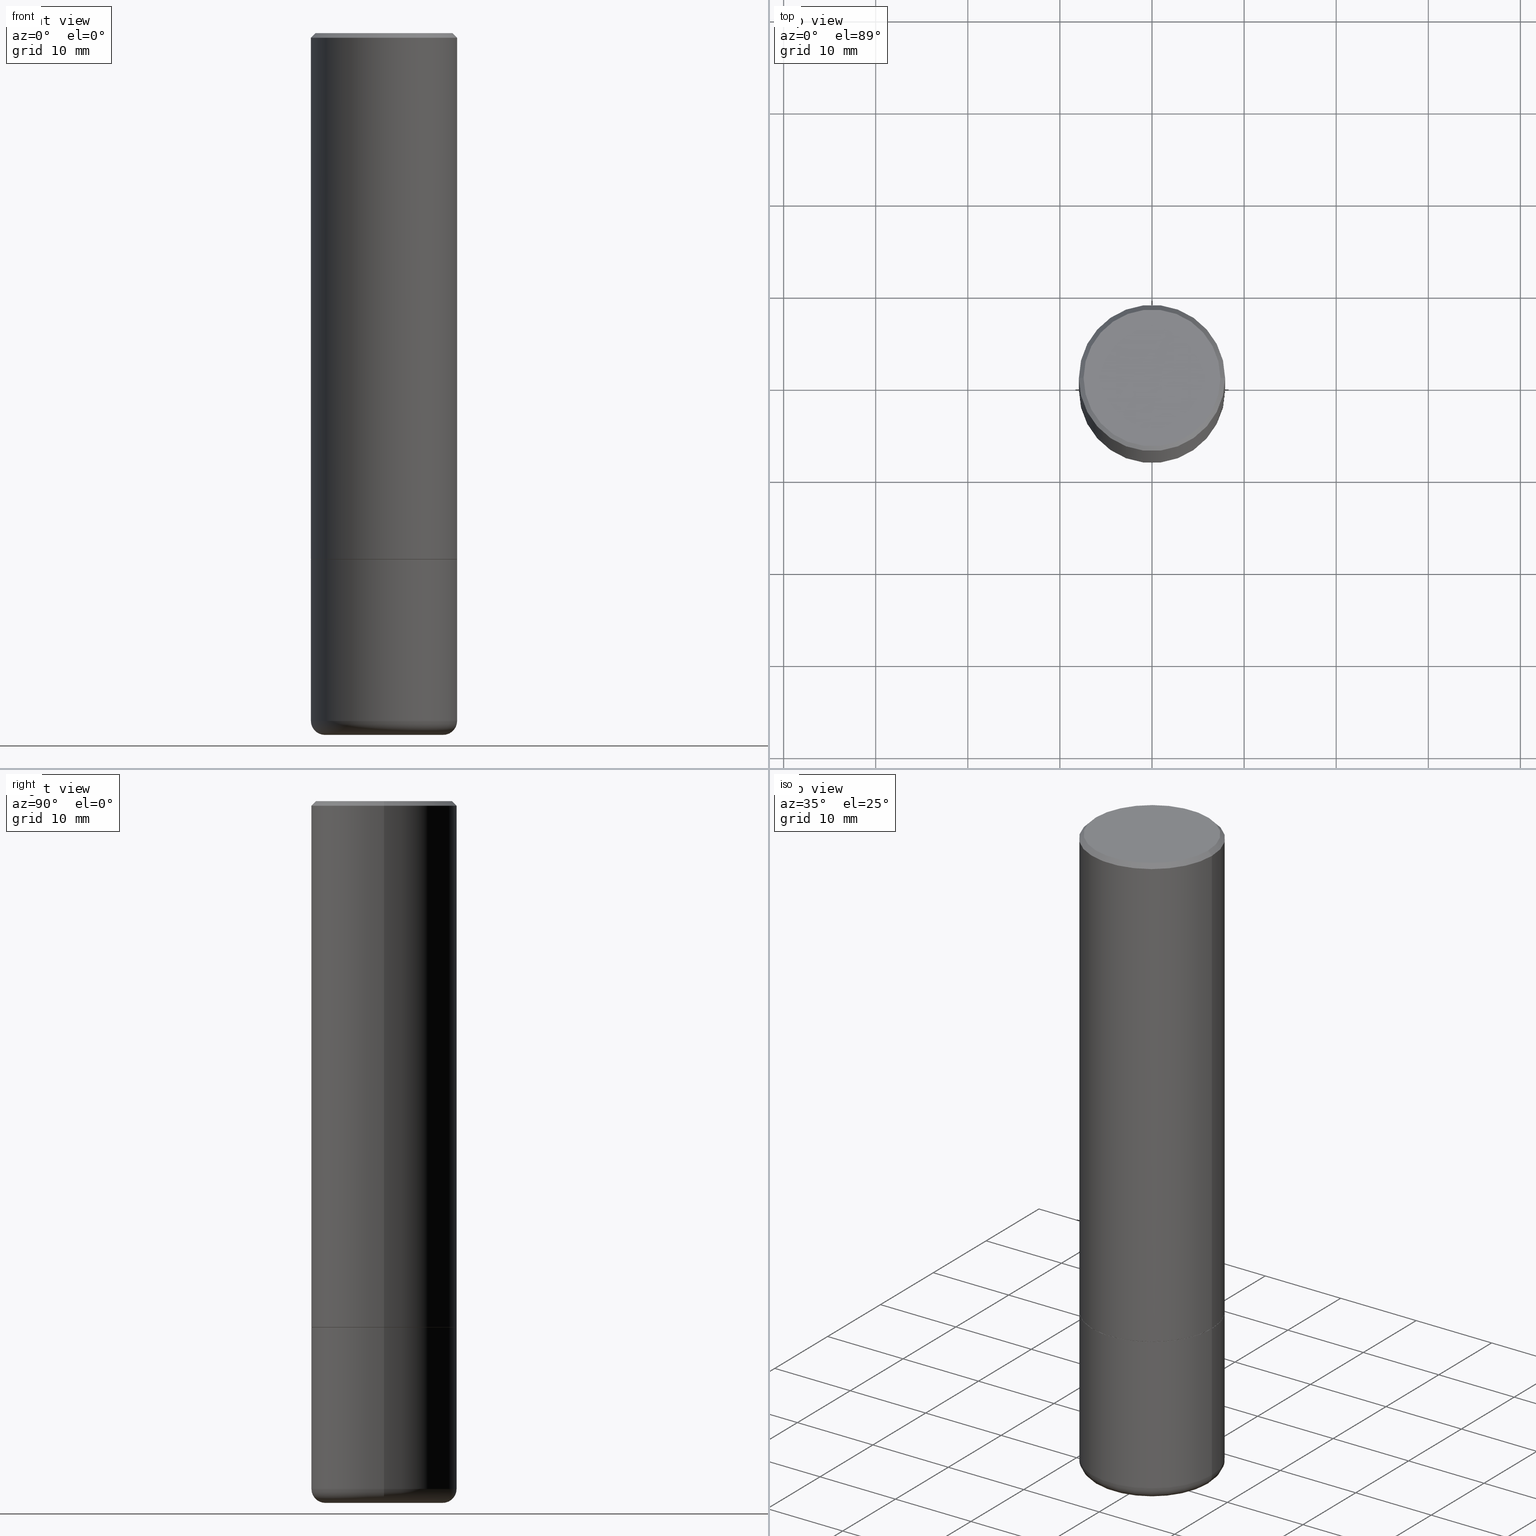
[diagram: canonical four-view strip — front | top / right | iso, engineering-drawing reading convention]
A machine part, canonical four-view strip (front | top / right | iso — engineering-drawing reading convention). The complete STEP part file that produces these views, byte-faithful:
ISO-10303-21;
HEADER;
FILE_DESCRIPTION (( 'STEP AP203' ),
    '1' );
FILE_NAME ('32601.STEP',
    '2022-04-26T19:39:30',
    ( '' ),
    ( '' ),
    'SwSTEP 2.0',
    'SolidWorks 2022',
    '' );
FILE_SCHEMA (( 'CONFIG_CONTROL_DESIGN' ));
ENDSEC;

DATA;
#1 = CARTESIAN_POINT ( 'NONE',  ( 0.000000000000000000, 0.000000000000000000, 0.000000000000000000 ) ) ;
#2 = DIRECTION ( 'NONE',  ( -2.445468806185136597E-29, 3.491481338843145583E-15, 1.000000000000000000 ) ) ;
#3 = DIRECTION ( 'NONE',  ( 1.000000000000000000, 0.000000000000000000, 0.000000000000000000 ) ) ;
#4 = CARTESIAN_POINT ( 'NONE',  ( 0.3124999999999998335, -2.213735251080465334E-15, -0.02000000000000005246 ) ) ;
#5 = EDGE_CURVE ( 'NONE', #424, #370, #228, .T. ) ;
#6 = DIRECTION ( 'NONE',  ( -1.000000000000000000, 6.982962677686265922E-15, -4.876176775795935793E-29 ) ) ;
#7 = DIRECTION ( 'NONE',  ( 1.000000000000000000, -6.982962677686269077E-15, 0.000000000000000000 ) ) ;
#8 = APPROVAL_PERSON_ORGANIZATION ( #378, #90, #408 ) ;
#9 =( LENGTH_UNIT ( ) NAMED_UNIT ( * ) SI_UNIT ( $, .METRE. ) );
#10 = PERSON_AND_ORGANIZATION ( #255, #229 ) ;
#11 = DIRECTION ( 'NONE',  ( -1.000000000000000000, 6.982962677686267499E-15, 0.000000000000000000 ) ) ;
#12 =( CONVERSION_BASED_UNIT ( 'INCH', #176 ) LENGTH_UNIT ( ) NAMED_UNIT ( #162 ) );
#13 = CARTESIAN_POINT ( 'NONE',  ( 7.189678290184301639E-29, -1.026495513619884961E-14, -2.940000000000000391 ) ) ;
#14 = ADVANCED_FACE ( 'NONE', ( #397 ), #265, .F. ) ;
#15 = CC_DESIGN_PERSON_AND_ORGANIZATION_ASSIGNMENT ( #260, #149, ( #98 ) ) ;
#16 = DIRECTION ( 'NONE',  ( 0.000000000000000000, 0.000000000000000000, 1.000000000000000000 ) ) ;
#17 = FACE_OUTER_BOUND ( 'NONE', #225, .T. ) ;
#18 = AXIS2_PLACEMENT_3D ( 'NONE', #13, #219, #386 ) ;
#19 = AXIS2_PLACEMENT_3D ( 'NONE', #172, #212, #134 ) ;
#20 = ORIENTED_EDGE ( 'NONE', *, *, #5, .F. ) ;
#21 = VERTEX_POINT ( 'NONE', #92 ) ;
#22 = CIRCLE ( 'NONE', #19, 0.06000000000000001166 ) ;
#23 = ORIENTED_EDGE ( 'NONE', *, *, #82, .T. ) ;
#24 = DIRECTION ( 'NONE',  ( -2.445468806185136597E-29, 3.491481338843145583E-15, 1.000000000000000000 ) ) ;
#25 = VERTEX_POINT ( 'NONE', #124 ) ;
#26 = DIRECTION ( 'NONE',  ( 1.000000000000000000, -6.982962677686265922E-15, 4.876176775795935793E-29 ) ) ;
#27 = ORIENTED_EDGE ( 'NONE', *, *, #403, .F. ) ;
#28 = DIRECTION ( 'NONE',  ( 2.438088387897960049E-29, -3.491481338843145188E-15, -1.000000000000000000 ) ) ;
#29 = CC_DESIGN_PERSON_AND_ORGANIZATION_ASSIGNMENT ( #308, #89, ( #98 ) ) ;
#30 = ORIENTED_EDGE ( 'NONE', *, *, #315, .F. ) ;
#31 = CARTESIAN_POINT ( 'NONE',  ( 0.2514528556137646809, -1.219950392283044754E-14, -2.999990861709383783 ) ) ;
#32 = PRODUCT_DEFINITION_SHAPE ( 'NONE', 'NONE',  #294 ) ;
#33 = CIRCLE ( 'NONE', #440, 0.2924999999999997602 ) ;
#34 = CARTESIAN_POINT ( 'NONE',  ( -0.3114999999999999991, -5.642492390504367165E-15, -2.250000000000000444 ) ) ;
#35 = DIRECTION ( 'NONE',  ( -2.445468806185136597E-29, 3.491481338843145583E-15, 1.000000000000000000 ) ) ;
#36 = APPROVAL_DATE_TIME ( #342, #90 ) ;
#37 = CARTESIAN_POINT ( 'NONE',  ( 5.502304813916558464E-29, -7.855833012397078448E-15, -2.250000000000000444 ) ) ;
#38 = CARTESIAN_POINT ( 'NONE',  ( 4.890937612370285420E-31, -6.982962677686308865E-17, -0.02000000000000005246 ) ) ;
#39 = COORDINATED_UNIVERSAL_TIME_OFFSET ( 5, 0, .BEHIND. ) ;
#40 = CARTESIAN_POINT ( 'NONE',  ( 7.189678290184301639E-29, -1.026495513619884961E-14, -2.940000000000000391 ) ) ;
#41 = AXIS2_PLACEMENT_3D ( 'NONE', #105, #346, #281 ) ;
#42 = AXIS2_PLACEMENT_3D ( 'NONE', #140, #275, #414 ) ;
#43 = DIRECTION ( 'NONE',  ( 1.000000000000000000, -6.982962677686269077E-15, 4.883557194083114022E-29 ) ) ;
#44 = LINE ( 'NONE', #240, #428 ) ;
#45 = ADVANCED_FACE ( 'NONE', ( #232 ), #230, .T. ) ;
#46 = CC_DESIGN_PERSON_AND_ORGANIZATION_ASSIGNMENT ( #215, #382, ( #130 ) ) ;
#47 = FACE_OUTER_BOUND ( 'NONE', #119, .T. ) ;
#48 = VERTEX_POINT ( 'NONE', #365 ) ;
#49 = ADVANCED_BREP_SHAPE_REPRESENTATION ( '32601', ( #153, #148, #258 ), #184 ) ;
#50 = APPROVAL_STATUS ( 'not_yet_approved' ) ;
#51 = LOCAL_TIME ( 15, 39, 30.00000000000000000, #39 ) ;
#52 = VERTEX_POINT ( 'NONE', #155 ) ;
#53 = VERTEX_POINT ( 'NONE', #234 ) ;
#54 = COORDINATED_UNIVERSAL_TIME_OFFSET ( 5, 0, .BEHIND. ) ;
#55 = VECTOR ( 'NONE', #252, 39.37007874015747433 ) ;
#56 = ORIENTED_EDGE ( 'NONE', *, *, #321, .T. ) ;
#57 = AXIS2_PLACEMENT_3D ( 'NONE', #208, #415, #166 ) ;
#58 = CARTESIAN_POINT ( 'NONE',  ( 2.042516583223231356E-15, 0.2924999999999997602, -1.016989779121518999E-15 ) ) ;
#59 = EDGE_CURVE ( 'NONE', #48, #426, #325, .T. ) ;
#60 = EDGE_CURVE ( 'NONE', #133, #128, #282, .T. ) ;
#61 = ORIENTED_EDGE ( 'NONE', *, *, #117, .T. ) ;
#62 = PLANE ( 'NONE',  #348 ) ;
#63 = DIRECTION ( 'NONE',  ( -1.000000000000000000, 6.982962677686265922E-15, -4.876176775795935793E-29 ) ) ;
#64 = SECURITY_CLASSIFICATION ( '', '', #425 ) ;
#65 = EDGE_LOOP ( 'NONE', ( #224, #123 ) ) ;
#66 = ORIENTED_EDGE ( 'NONE', *, *, #60, .F. ) ;
#67 = CARTESIAN_POINT ( 'NONE',  ( 7.325329725114651997E-29, -1.045954707110368727E-14, -2.995601735788262054 ) ) ;
#68 = DIRECTION ( 'NONE',  ( -2.445468806185136597E-29, 3.491481338843145583E-15, 1.000000000000000000 ) ) ;
#69 = CYLINDRICAL_SURFACE ( 'NONE', #401, 0.3124999999999998890 ) ;
#70 = AXIS2_PLACEMENT_3D ( 'NONE', #100, #68, #238 ) ;
#71 = AXIS2_PLACEMENT_3D ( 'NONE', #38, #377, #278 ) ;
#72 = DIRECTION ( 'NONE',  ( -2.445468806185136597E-29, 3.491481338843145583E-15, 1.000000000000000000 ) ) ;
#73 = DIRECTION ( 'NONE',  ( 1.000000000000000000, -6.982962677686269077E-15, 0.000000000000000000 ) ) ;
#74 = COORDINATED_UNIVERSAL_TIME_OFFSET ( 5, 0, .BEHIND. ) ;
#75 = DIRECTION ( 'NONE',  ( -2.445468806185136597E-29, 3.491481338843145583E-15, 1.000000000000000000 ) ) ;
#76 = PLANE ( 'NONE',  #196 ) ;
#77 = LINE ( 'NONE', #171, #55 ) ;
#78 = DIRECTION ( 'NONE',  ( 1.000000000000000000, -6.982962677686266711E-15, 4.876176775795935232E-29 ) ) ;
#79 = DIRECTION ( 'NONE',  ( -2.445468806185136597E-29, 3.491481338843145583E-15, 1.000000000000000000 ) ) ;
#80 = AXIS2_PLACEMENT_3D ( 'NONE', #195, #231, #297 ) ;
#81 = LOCAL_TIME ( 15, 39, 30.00000000000000000, #54 ) ;
#82 = EDGE_CURVE ( 'NONE', #429, #53, #193, .T. ) ;
#83 = CALENDAR_DATE ( 2022, 26, 4 ) ;
#84 = DIRECTION ( 'NONE',  ( 0.7071067811865469066, -7.319954787623254468E-15, -0.7071067811865481278 ) ) ;
#85 = EDGE_LOOP ( 'NONE', ( #402, #327, #191, #322 ) ) ;
#86 = EDGE_CURVE ( 'NONE', #52, #25, #222, .T. ) ;
#87 = AXIS2_PLACEMENT_3D ( 'NONE', #203, #270, #43 ) ;
#88 = ORIENTED_EDGE ( 'NONE', *, *, #236, .F. ) ;
#89 = PERSON_AND_ORGANIZATION_ROLE ( 'creator' ) ;
#90 = APPROVAL ( #317, 'UNSPECIFIED' ) ;
#91 = CIRCLE ( 'NONE', #367, 0.3124999999999998335 ) ;
#92 = CARTESIAN_POINT ( 'NONE',  ( 0.2924999999999997602, -2.110215457714318353E-15, 8.537024980215342529E-18 ) ) ;
#93 = TOROIDAL_SURFACE ( 'NONE', #87, 0.2525000000000000022, 0.06000000000000004635 ) ;
#94 = VERTEX_POINT ( 'NONE', #373 ) ;
#95 = ORIENTED_EDGE ( 'NONE', *, *, #156, .F. ) ;
#96 = DIRECTION ( 'NONE',  ( 1.000000000000000000, -6.982962677686266711E-15, 4.876176775795936353E-29 ) ) ;
#97 = VECTOR ( 'NONE', #379, 39.37007874015747433 ) ;
#98 = PRODUCT_DEFINITION_FORMATION_WITH_SPECIFIED_SOURCE ( 'ANY', '', #130, .NOT_KNOWN. ) ;
#99 = ORIENTED_EDGE ( 'NONE', *, *, #5, .T. ) ;
#100 = CARTESIAN_POINT ( 'NONE',  ( 5.499859345110372861E-29, -7.852341531058235441E-15, -2.249000000000000110 ) ) ;
#101 = CARTESIAN_POINT ( 'NONE',  ( -0.2514528556137646809, -8.718526204409729292E-15, -2.999990861709383783 ) ) ;
#102 = EDGE_CURVE ( 'NONE', #128, #133, #91, .T. ) ;
#103 = DIRECTION ( 'NONE',  ( -6.982962677686266711E-15, -1.000000000000000000, 3.491481338843145583E-15 ) ) ;
#104 = CIRCLE ( 'NONE', #150, 0.2924999999999997602 ) ;
#105 = CARTESIAN_POINT ( 'NONE',  ( 1.036039500567319897E-27, -1.479189827891559607E-13, -42.36568047594574438 ) ) ;
#106 = FACE_OUTER_BOUND ( 'NONE', #267, .T. ) ;
#107 = LINE ( 'NONE', #245, #326 ) ;
#108 = CARTESIAN_POINT ( 'NONE',  ( -0.3125000000000000000, -8.044509086948536533E-15, -2.940000000000000391 ) ) ;
#109 = EDGE_CURVE ( 'NONE', #52, #133, #44, .T. ) ;
#110 = DIRECTION ( 'NONE',  ( 2.445468806185136597E-29, -3.491481338843145583E-15, -1.000000000000000000 ) ) ;
#111 = CARTESIAN_POINT ( 'NONE',  ( 5.502304813916558464E-29, -7.855833012397078448E-15, -2.250000000000000444 ) ) ;
#112 = PERSON_AND_ORGANIZATION_ROLE ( 'creator' ) ;
#113 = CIRCLE ( 'NONE', #18, 0.3125000000000000000 ) ;
#114 = LINE ( 'NONE', #211, #385 ) ;
#115 = AXIS2_PLACEMENT_3D ( 'NONE', #40, #169, #277 ) ;
#116 = DATE_AND_TIME ( #221, #51 ) ;
#117 = EDGE_CURVE ( 'NONE', #363, #370, #77, .T. ) ;
#118 = ORIENTED_EDGE ( 'NONE', *, *, #262, .F. ) ;
#119 = EDGE_LOOP ( 'NONE', ( #442, #285, #197, #427 ) ) ;
#120 = ORIENTED_EDGE ( 'NONE', *, *, #423, .F. ) ;
#121 = ORIENTED_EDGE ( 'NONE', *, *, #60, .T. ) ;
#122 = ADVANCED_FACE ( 'NONE', ( #17 ), #179, .T. ) ;
#123 = ORIENTED_EDGE ( 'NONE', *, *, #315, .T. ) ;
#124 = CARTESIAN_POINT ( 'NONE',  ( 0.3125000000000000000, -1.003451736783519379E-14, -2.249000000000000110 ) ) ;
#125 = CIRCLE ( 'NONE', #289, 0.3125000000000000000 ) ;
#126 = EDGE_CURVE ( 'NONE', #94, #302, #114, .T. ) ;
#127 = ORIENTED_EDGE ( 'NONE', *, *, #404, .T. ) ;
#128 = VERTEX_POINT ( 'NONE', #4 ) ;
#129 = DIRECTION ( 'NONE',  ( -2.445468806185136597E-29, 3.491481338843145583E-15, 1.000000000000000000 ) ) ;
#130 = PRODUCT ( '32601', '32601', '', ( #388 ) ) ;
#131 = VECTOR ( 'NONE', #434, 39.37007874015748143 ) ;
#132 = VECTOR ( 'NONE', #84, 39.37007874015748143 ) ;
#133 = VERTEX_POINT ( 'NONE', #175 ) ;
#134 = DIRECTION ( 'NONE',  ( -1.000000000000000000, 7.105427357601006592E-15, 0.000000000000000000 ) ) ;
#135 = ADVANCED_FACE ( 'NONE', ( #383 ), #400, .T. ) ;
#136 = CARTESIAN_POINT ( 'NONE',  ( 0.3114999999999999991, -1.003102588649635078E-14, -2.250000000000000444 ) ) ;
#137 = CARTESIAN_POINT ( 'NONE',  ( 1.036039500567319897E-27, -1.479189827891559607E-13, -42.36568047594574438 ) ) ;
#138 = CARTESIAN_POINT ( 'NONE',  ( -0.3124999999999998335, 2.112346210000093866E-15, -0.02000000000000005246 ) ) ;
#139 = CIRCLE ( 'NONE', #115, 0.3125000000000000000 ) ;
#140 = CARTESIAN_POINT ( 'NONE',  ( 5.502304813916558464E-29, -7.855833012397078448E-15, -2.250000000000000444 ) ) ;
#141 = FACE_OUTER_BOUND ( 'NONE', #187, .T. ) ;
#142 = DIRECTION ( 'NONE',  ( 0.7071067811865232589, -2.468850131082003836E-15, 0.7071067811865715536 ) ) ;
#143 = CARTESIAN_POINT ( 'NONE',  ( 5.499859345110372861E-29, -7.852341531058235441E-15, -2.249000000000000110 ) ) ;
#144 = ADVANCED_FACE ( 'NONE', ( #313 ), #146, .T. ) ;
#145 = AXIS2_PLACEMENT_3D ( 'NONE', #137, #341, #11 ) ;
#146 = CYLINDRICAL_SURFACE ( 'NONE', #173, 0.3124999999999998890 ) ;
#147 = ORIENTED_EDGE ( 'NONE', *, *, #403, .T. ) ;
#148 = MANIFOLD_SOLID_BREP ( 'Body-Move/Copy2[2]', #410 ) ;
#149 = PERSON_AND_ORGANIZATION_ROLE ( 'design_supplier' ) ;
#150 = AXIS2_PLACEMENT_3D ( 'NONE', #366, #168, #375 ) ;
#151 = ORIENTED_EDGE ( 'NONE', *, *, #59, .F. ) ;
#152 = ADVANCED_FACE ( 'NONE', ( #376 ), #202, .F. ) ;
#153 = MANIFOLD_SOLID_BREP ( 'Body-Move/Copy2[1]', #300 ) ;
#154 = ORIENTED_EDGE ( 'NONE', *, *, #253, .F. ) ;
#155 = CARTESIAN_POINT ( 'NONE',  ( -0.3125000000000000000, -1.740639529667233725E-15, -2.249000000000000110 ) ) ;
#156 = EDGE_CURVE ( 'NONE', #426, #48, #188, .T. ) ;
#157 = DIRECTION ( 'NONE',  ( 1.000000000000000000, -6.982962677686269077E-15, 0.000000000000000000 ) ) ;
#158 = AXIS2_PLACEMENT_3D ( 'NONE', #339, #103, #406 ) ;
#159 = CARTESIAN_POINT ( 'NONE',  ( 0.3125000000000000000, -1.003800884917403837E-14, -2.250000000000000444 ) ) ;
#160 = ORIENTED_EDGE ( 'NONE', *, *, #241, .T. ) ;
#161 = ORIENTED_EDGE ( 'NONE', *, *, #321, .F. ) ;
#162 = DIMENSIONAL_EXPONENTS ( 1.000000000000000000, 0.000000000000000000, 0.000000000000000000, 0.000000000000000000, 0.000000000000000000, 0.000000000000000000, 0.000000000000000000 ) ;
#163 = EDGE_LOOP ( 'NONE', ( #95, #151 ) ) ;
#164 = AXIS2_PLACEMENT_3D ( 'NONE', #269, #129, #157 ) ;
#165 = ADVANCED_FACE ( 'NONE', ( #141 ), #338, .F. ) ;
#166 = DIRECTION ( 'NONE',  ( 1.000000000000000000, -6.982962677686269077E-15, 4.883557194083114022E-29 ) ) ;
#167 = CC_DESIGN_DATE_AND_TIME_ASSIGNMENT ( #178, #305, ( #294 ) ) ;
#168 = DIRECTION ( 'NONE',  ( -2.445468806185136597E-29, 3.491481338843145583E-15, 1.000000000000000000 ) ) ;
#169 = DIRECTION ( 'NONE',  ( -2.445468806185136597E-29, 3.491481338843145583E-15, 1.000000000000000000 ) ) ;
#170 = DIRECTION ( 'NONE',  ( 1.000000000000000000, -6.982962677686265922E-15, 0.000000000000000000 ) ) ;
#171 = CARTESIAN_POINT ( 'NONE',  ( 4.595119929091913047E-19, -1.045908755911085019E-14, -2.995601735788262054 ) ) ;
#172 = CARTESIAN_POINT ( 'NONE',  ( -0.2525000000000000022, -8.470834728404597024E-15, -2.940000000000000391 ) ) ;
#173 = AXIS2_PLACEMENT_3D ( 'NONE', #316, #79, #409 ) ;
#174 = CC_DESIGN_APPROVAL ( #387, ( #64 ) ) ;
#175 = CARTESIAN_POINT ( 'NONE',  ( -0.3124999999999998335, 2.112346210000093866E-15, -0.02000000000000005246 ) ) ;
#176 = LENGTH_MEASURE_WITH_UNIT ( LENGTH_MEASURE( 0.02539999999999999897 ), #9 );
#177 = DIRECTION ( 'NONE',  ( -1.000000000000000000, 6.982962677686265133E-15, 0.000000000000000000 ) ) ;
#178 = DATE_AND_TIME ( #83, #411 ) ;
#179 = CYLINDRICAL_SURFACE ( 'NONE', #320, 0.3125000000000000000 ) ;
#180 = PRODUCT_RELATED_PRODUCT_CATEGORY ( 'detail', '', ( #130 ) ) ;
#181 = EDGE_LOOP ( 'NONE', ( #432, #99, #323, #88 ) ) ;
#182 = EDGE_CURVE ( 'NONE', #363, #424, #384, .T. ) ;
#183 = APPROVAL_ROLE ( '' ) ;
#184 =( GEOMETRIC_REPRESENTATION_CONTEXT ( 3 ) GLOBAL_UNCERTAINTY_ASSIGNED_CONTEXT ( ( #381 ) ) GLOBAL_UNIT_ASSIGNED_CONTEXT ( ( #12, #249, #217 ) ) REPRESENTATION_CONTEXT ( 'NONE', 'WORKASPACE' ) );
#185 = CALENDAR_DATE ( 2022, 26, 4 ) ;
#186 = EDGE_CURVE ( 'NONE', #25, #52, #439, .T. ) ;
#187 = EDGE_LOOP ( 'NONE', ( #261, #61, #20 ) ) ;
#188 = CIRCLE ( 'NONE', #233, 0.3114999999999999991 ) ;
#189 = VECTOR ( 'NONE', #273, 39.37007874015748854 ) ;
#190 = PERSON_AND_ORGANIZATION_ROLE ( 'classification_officer' ) ;
#191 = ORIENTED_EDGE ( 'NONE', *, *, #102, .F. ) ;
#192 = EDGE_CURVE ( 'NONE', #94, #429, #113, .T. ) ;
#193 = LINE ( 'NONE', #330, #131 ) ;
#194 = DIRECTION ( 'NONE',  ( -2.438088387897960049E-29, 3.491481338843145188E-15, 1.000000000000000000 ) ) ;
#195 = CARTESIAN_POINT ( 'NONE',  ( 4.890937612370285420E-31, -6.982962677686308865E-17, -0.02000000000000005246 ) ) ;
#196 = AXIS2_PLACEMENT_3D ( 'NONE', #246, #200, #6 ) ;
#197 = ORIENTED_EDGE ( 'NONE', *, *, #186, .F. ) ;
#198 = EDGE_LOOP ( 'NONE', ( #355, #23, #398, #291 ) ) ;
#199 = APPROVAL ( #345, 'UNSPECIFIED' ) ;
#200 = DIRECTION ( 'NONE',  ( 2.438088387897960049E-29, -3.491481338843145188E-15, -1.000000000000000000 ) ) ;
#201 = CARTESIAN_POINT ( 'NONE',  ( 4.890937612370285420E-31, -6.982962677686308865E-17, -0.02000000000000005246 ) ) ;
#202 = CONICAL_SURFACE ( 'NONE', #41, 2255.510300424650723, 1.553343034274961454 ) ;
#203 = CARTESIAN_POINT ( 'NONE',  ( 7.189678290184301639E-29, -1.026495513619884961E-14, -2.940000000000000391 ) ) ;
#204 = CIRCLE ( 'NONE', #360, 0.3125000000000000000 ) ;
#205 = DIRECTION ( 'NONE',  ( 1.000000000000000000, -6.982962677686265922E-15, 0.000000000000000000 ) ) ;
#206 = DIRECTION ( 'NONE',  ( -0.7071067811865469066, 2.468850131082250355E-15, -0.7071067811865481278 ) ) ;
#207 = DIRECTION ( 'NONE',  ( 1.000000000000000000, -6.982962677686266711E-15, 4.876176775795936353E-29 ) ) ;
#208 = CARTESIAN_POINT ( 'NONE',  ( 7.189678290184301639E-29, -1.026495513619884961E-14, -2.940000000000000391 ) ) ;
#209 = DESIGN_CONTEXT ( 'detailed design', #437, 'design' ) ;
#210 = APPLICATION_PROTOCOL_DEFINITION ( 'international standard', 'config_control_design', 1994, #437 ) ;
#211 = CARTESIAN_POINT ( 'NONE',  ( 0.3125000000000000000, -2.182175836776958347E-15, 1.523805242436230075E-29 ) ) ;
#212 = DIRECTION ( 'NONE',  ( 7.105427357601001859E-15, 1.000000000000000000, -3.491481338843145583E-15 ) ) ;
#213 = AXIS2_PLACEMENT_3D ( 'NONE', #143, #35, #349 ) ;
#214 = CIRCLE ( 'NONE', #158, 0.06000000000000001166 ) ;
#215 = PERSON_AND_ORGANIZATION ( #255, #229 ) ;
#216 = DIRECTION ( 'NONE',  ( -2.445468806185136877E-29, 3.491481338843145188E-15, 1.000000000000000000 ) ) ;
#217 =( NAMED_UNIT ( * ) SI_UNIT ( $, .STERADIAN. ) SOLID_ANGLE_UNIT ( ) );
#218 = COORDINATED_UNIVERSAL_TIME_OFFSET ( 5, 0, .BEHIND. ) ;
#219 = DIRECTION ( 'NONE',  ( -2.445468806185136597E-29, 3.491481338843145583E-15, 1.000000000000000000 ) ) ;
#220 = CC_DESIGN_DATE_AND_TIME_ASSIGNMENT ( #293, #392, ( #64 ) ) ;
#221 = CALENDAR_DATE ( 2022, 26, 4 ) ;
#222 = CIRCLE ( 'NONE', #70, 0.3125000000000000000 ) ;
#223 = VECTOR ( 'NONE', #142, 39.37007874015748854 ) ;
#224 = ORIENTED_EDGE ( 'NONE', *, *, #253, .T. ) ;
#225 = EDGE_LOOP ( 'NONE', ( #299, #394, #336, #118 ) ) ;
#226 = APPROVAL_DATE_TIME ( #396, #387 ) ;
#227 = COORDINATED_UNIVERSAL_TIME_OFFSET ( 5, 0, .BEHIND. ) ;
#228 = CIRCLE ( 'NONE', #164, 0.2514528556137634041 ) ;
#229 = ORGANIZATION ( 'UNSPECIFIED', 'UNSPECIFIED', '' ) ;
#230 = CYLINDRICAL_SURFACE ( 'NONE', #333, 0.3125000000000000000 ) ;
#231 = DIRECTION ( 'NONE',  ( -2.445468806185136597E-29, 3.491481338843145583E-15, 1.000000000000000000 ) ) ;
#232 = FACE_OUTER_BOUND ( 'NONE', #198, .T. ) ;
#233 = AXIS2_PLACEMENT_3D ( 'NONE', #248, #72, #205 ) ;
#234 = CARTESIAN_POINT ( 'NONE',  ( -0.3125000000000000000, -6.839948025047650950E-15, -2.250000000000000444 ) ) ;
#235 = LOCAL_TIME ( 15, 39, 30.00000000000000000, #74 ) ;
#236 = EDGE_CURVE ( 'NONE', #429, #94, #139, .T. ) ;
#237 = ORIENTED_EDGE ( 'NONE', *, *, #86, .F. ) ;
#238 = DIRECTION ( 'NONE',  ( 1.000000000000000000, -6.982962677686265133E-15, 0.000000000000000000 ) ) ;
#239 = CARTESIAN_POINT ( 'NONE',  ( 0.3114999999999999991, -1.003102588649635078E-14, -2.250000000000000444 ) ) ;
#240 = CARTESIAN_POINT ( 'NONE',  ( -0.3124999999999998890, 2.220446049250312292E-15, -1.537167215704657391E-29 ) ) ;
#241 = EDGE_CURVE ( 'NONE', #21, #128, #343, .T. ) ;
#242 = LINE ( 'NONE', #34, #189 ) ;
#243 = CARTESIAN_POINT ( 'NONE',  ( -4.595119927626783027E-19, -1.045908755911085019E-14, -2.995601735788262054 ) ) ;
#244 = FACE_OUTER_BOUND ( 'NONE', #181, .T. ) ;
#245 = CARTESIAN_POINT ( 'NONE',  ( 0.3124999999999998890, -2.182175836776957558E-15, 1.523805242436229235E-29 ) ) ;
#246 = CARTESIAN_POINT ( 'NONE',  ( 2.182175836777013173E-15, 0.3124999999999921729, -2.250000000000001332 ) ) ;
#247 = APPLICATION_PROTOCOL_DEFINITION ( 'international standard', 'config_control_design', 1994, #417 ) ;
#248 = CARTESIAN_POINT ( 'NONE',  ( 5.502304813916558464E-29, -7.855833012397078448E-15, -2.250000000000000444 ) ) ;
#249 =( NAMED_UNIT ( * ) PLANE_ANGLE_UNIT ( ) SI_UNIT ( $, .RADIAN. ) );
#250 = CONICAL_SURFACE ( 'NONE', #354, 0.3114999999999999991, 0.7853981633974141952 ) ;
#251 = CC_DESIGN_APPROVAL ( #90, ( #98 ) ) ;
#252 = DIRECTION ( 'NONE',  ( 0.9998476951563914916, -6.920387862090557146E-15, -0.01745240643727538621 ) ) ;
#253 = EDGE_CURVE ( 'NONE', #391, #21, #33, .T. ) ;
#254 = CC_DESIGN_PERSON_AND_ORGANIZATION_ASSIGNMENT ( #10, #112, ( #294 ) ) ;
#255 = PERSON ( 'UNSPECIFIED', 'UNSPECIFIED', 'UNSPECIFIED', ('UNSPECIFIED'), ('UNSPECIFIED'), ('UNSPECIFIED') ) ;
#256 = EDGE_LOOP ( 'NONE', ( #56, #127, #353, #120 ) ) ;
#257 = AXIS2_PLACEMENT_3D ( 'NONE', #369, #295, #263 ) ;
#258 = AXIS2_PLACEMENT_3D ( 'NONE', #280, #16, #3 ) ;
#259 = EDGE_LOOP ( 'NONE', ( #288, #154, #147, #121 ) ) ;
#260 = PERSON_AND_ORGANIZATION ( #255, #229 ) ;
#261 = ORIENTED_EDGE ( 'NONE', *, *, #182, .F. ) ;
#262 = EDGE_CURVE ( 'NONE', #53, #302, #204, .T. ) ;
#263 = DIRECTION ( 'NONE',  ( 1.000000000000000000, -6.982962677686265922E-15, 0.000000000000000000 ) ) ;
#264 = ORIENTED_EDGE ( 'NONE', *, *, #117, .F. ) ;
#265 = PLANE ( 'NONE',  #310 ) ;
#266 = ADVANCED_FACE ( 'NONE', ( #47 ), #389, .T. ) ;
#267 = EDGE_LOOP ( 'NONE', ( #30, #160, #435, #27 ) ) ;
#268 = CC_DESIGN_SECURITY_CLASSIFICATION ( #64, ( #98 ) ) ;
#269 = CARTESIAN_POINT ( 'NONE',  ( 7.336384071150766432E-29, -1.047441211035828263E-14, -2.999990861709383783 ) ) ;
#270 = DIRECTION ( 'NONE',  ( -2.445468806185136597E-29, 3.491481338843145583E-15, 1.000000000000000000 ) ) ;
#271 = FACE_OUTER_BOUND ( 'NONE', #399, .T. ) ;
#272 = DIRECTION ( 'NONE',  ( 1.000000000000000000, -6.982962677686266711E-15, 4.876067333457693400E-29 ) ) ;
#273 = DIRECTION ( 'NONE',  ( -0.7071067811865232589, 7.493145998870265808E-15, 0.7071067811865715536 ) ) ;
#274 = TOROIDAL_SURFACE ( 'NONE', #57, 0.2525000000000000022, 0.06000000000000004635 ) ;
#275 = DIRECTION ( 'NONE',  ( -2.445468806185136597E-29, 3.491481338843145583E-15, 1.000000000000000000 ) ) ;
#276 = CALENDAR_DATE ( 2022, 26, 4 ) ;
#277 = DIRECTION ( 'NONE',  ( 1.000000000000000000, -6.982962677686269077E-15, 0.000000000000000000 ) ) ;
#278 = DIRECTION ( 'NONE',  ( -1.000000000000000000, 6.982962677686265133E-15, 0.000000000000000000 ) ) ;
#279 = EDGE_CURVE ( 'NONE', #25, #128, #107, .T. ) ;
#280 = CARTESIAN_POINT ( 'NONE',  ( 0.000000000000000000, 0.000000000000000000, 0.000000000000000000 ) ) ;
#281 = DIRECTION ( 'NONE',  ( -1.000000000000000000, 6.982962677686267499E-15, 0.000000000000000000 ) ) ;
#282 = CIRCLE ( 'NONE', #80, 0.3124999999999998335 ) ;
#283 = APPROVAL_PERSON_ORGANIZATION ( #287, #387, #183 ) ;
#284 = CARTESIAN_POINT ( 'NONE',  ( 0.000000000000000000, 0.000000000000000000, 0.000000000000000000 ) ) ;
#285 = ORIENTED_EDGE ( 'NONE', *, *, #438, .T. ) ;
#286 = SHAPE_DEFINITION_REPRESENTATION ( #32, #49 ) ;
#287 = PERSON_AND_ORGANIZATION ( #255, #229 ) ;
#288 = ORIENTED_EDGE ( 'NONE', *, *, #241, .F. ) ;
#289 = AXIS2_PLACEMENT_3D ( 'NONE', #418, #380, #73 ) ;
#290 = ORIENTED_EDGE ( 'NONE', *, *, #279, .T. ) ;
#291 = ORIENTED_EDGE ( 'NONE', *, *, #126, .F. ) ;
#292 = ADVANCED_FACE ( 'NONE', ( #364 ), #62, .F. ) ;
#293 = DATE_AND_TIME ( #431, #81 ) ;
#294 = PRODUCT_DEFINITION ( 'UNKNOWN', '', #98, #209 ) ;
#295 = DIRECTION ( 'NONE',  ( -2.445468806185136597E-29, 3.491481338843145583E-15, 1.000000000000000000 ) ) ;
#296 = AXIS2_PLACEMENT_3D ( 'NONE', #413, #303, #304 ) ;
#297 = DIRECTION ( 'NONE',  ( 1.000000000000000000, -6.982962677686265133E-15, 0.000000000000000000 ) ) ;
#298 = ORIENTED_EDGE ( 'NONE', *, *, #182, .T. ) ;
#299 = ORIENTED_EDGE ( 'NONE', *, *, #82, .F. ) ;
#300 = CLOSED_SHELL ( 'NONE', ( #45, #412, #165, #152, #332, #122, #372 ) ) ;
#301 = CONICAL_SURFACE ( 'NONE', #71, 0.3124999999999998335, 0.7853981633974473908 ) ;
#302 = VERTEX_POINT ( 'NONE', #159 ) ;
#303 = DIRECTION ( 'NONE',  ( -2.445468806185136597E-29, 3.491481338843145583E-15, 1.000000000000000000 ) ) ;
#304 = DIRECTION ( 'NONE',  ( 1.000000000000000000, -6.982962677686269077E-15, 0.000000000000000000 ) ) ;
#305 = DATE_TIME_ROLE ( 'creation_date' ) ;
#306 = CARTESIAN_POINT ( 'NONE',  ( -2.087702828670439639E-46, 2.980686340760894400E-32, 8.537024980200822558E-18 ) ) ;
#307 = LINE ( 'NONE', #136, #223 ) ;
#308 = PERSON_AND_ORGANIZATION ( #255, #229 ) ;
#309 = DIRECTION ( 'NONE',  ( -2.445468806185136877E-29, 3.491481338843145188E-15, 1.000000000000000000 ) ) ;
#310 = AXIS2_PLACEMENT_3D ( 'NONE', #58, #28, #63 ) ;
#311 = CIRCLE ( 'NONE', #296, 0.2514528556137634041 ) ;
#312 = APPROVAL_DATE_TIME ( #116, #199 ) ;
#313 = FACE_OUTER_BOUND ( 'NONE', #85, .T. ) ;
#314 = FACE_OUTER_BOUND ( 'NONE', #256, .T. ) ;
#315 = EDGE_CURVE ( 'NONE', #21, #391, #104, .T. ) ;
#316 = CARTESIAN_POINT ( 'NONE',  ( 0.000000000000000000, 0.000000000000000000, 0.000000000000000000 ) ) ;
#317 = APPROVAL_STATUS ( 'not_yet_approved' ) ;
#318 = DIRECTION ( 'NONE',  ( -2.445468806185136597E-29, 3.491481338843145583E-15, 1.000000000000000000 ) ) ;
#319 = ORIENTED_EDGE ( 'NONE', *, *, #262, .T. ) ;
#320 = AXIS2_PLACEMENT_3D ( 'NONE', #284, #318, #207 ) ;
#321 = EDGE_CURVE ( 'NONE', #370, #424, #311, .T. ) ;
#322 = ORIENTED_EDGE ( 'NONE', *, *, #279, .F. ) ;
#323 = ORIENTED_EDGE ( 'NONE', *, *, #423, .T. ) ;
#324 = ORIENTED_EDGE ( 'NONE', *, *, #109, .F. ) ;
#325 = CIRCLE ( 'NONE', #257, 0.3114999999999999991 ) ;
#326 = VECTOR ( 'NONE', #362, 39.37007874015748143 ) ;
#327 = ORIENTED_EDGE ( 'NONE', *, *, #109, .T. ) ;
#328 = ADVANCED_FACE ( 'NONE', ( #407 ), #250, .T. ) ;
#329 = EDGE_LOOP ( 'NONE', ( #359, #430, #351, #237 ) ) ;
#330 = CARTESIAN_POINT ( 'NONE',  ( -0.3125000000000000000, 2.220446049250313081E-15, -1.537167215704658232E-29 ) ) ;
#331 = CARTESIAN_POINT ( 'NONE',  ( 5.502304813916558464E-29, -7.855833012397078448E-15, -2.250000000000000444 ) ) ;
#332 = ADVANCED_FACE ( 'NONE', ( #244 ), #274, .T. ) ;
#333 = AXIS2_PLACEMENT_3D ( 'NONE', #361, #24, #96 ) ;
#334 = ORIENTED_EDGE ( 'NONE', *, *, #86, .T. ) ;
#335 = EDGE_LOOP ( 'NONE', ( #264, #298, #161 ) ) ;
#336 = ORIENTED_EDGE ( 'NONE', *, *, #126, .T. ) ;
#337 = CARTESIAN_POINT ( 'NONE',  ( -0.2924999999999997602, 2.077431396611662611E-15, 8.537024980186416602E-18 ) ) ;
#338 = CONICAL_SURFACE ( 'NONE', #145, 2255.510300424650723, 1.553343034274961454 ) ;
#339 = CARTESIAN_POINT ( 'NONE',  ( 0.2525000000000000022, -1.202815321231463133E-14, -2.940000000000000391 ) ) ;
#340 = EDGE_CURVE ( 'NONE', #302, #53, #125, .T. ) ;
#341 = DIRECTION ( 'NONE',  ( 2.445468806185136597E-29, -3.491481338843145583E-15, -1.000000000000000000 ) ) ;
#342 = DATE_AND_TIME ( #276, #235 ) ;
#343 = LINE ( 'NONE', #420, #132 ) ;
#344 = LINE ( 'NONE', #138, #421 ) ;
#345 = APPROVAL_STATUS ( 'not_yet_approved' ) ;
#346 = DIRECTION ( 'NONE',  ( 2.445468806185136597E-29, -3.491481338843145583E-15, -1.000000000000000000 ) ) ;
#347 = DIRECTION ( 'NONE',  ( -2.445468806185136597E-29, 3.491481338843145583E-15, 1.000000000000000000 ) ) ;
#348 = AXIS2_PLACEMENT_3D ( 'NONE', #331, #194, #26 ) ;
#349 = DIRECTION ( 'NONE',  ( 1.000000000000000000, -6.982962677686265133E-15, 0.000000000000000000 ) ) ;
#350 = DIRECTION ( 'NONE',  ( -2.445468806185136597E-29, 3.491481338843145583E-15, 1.000000000000000000 ) ) ;
#351 = ORIENTED_EDGE ( 'NONE', *, *, #357, .T. ) ;
#352 = PERSON_AND_ORGANIZATION ( #255, #229 ) ;
#353 = ORIENTED_EDGE ( 'NONE', *, *, #192, .F. ) ;
#354 = AXIS2_PLACEMENT_3D ( 'NONE', #111, #2, #170 ) ;
#355 = ORIENTED_EDGE ( 'NONE', *, *, #192, .T. ) ;
#356 = ORIENTED_EDGE ( 'NONE', *, *, #340, .T. ) ;
#357 = EDGE_CURVE ( 'NONE', #426, #25, #307, .T. ) ;
#358 = ADVANCED_FACE ( 'NONE', ( #106 ), #301, .T. ) ;
#359 = ORIENTED_EDGE ( 'NONE', *, *, #438, .F. ) ;
#360 = AXIS2_PLACEMENT_3D ( 'NONE', #37, #75, #7 ) ;
#361 = CARTESIAN_POINT ( 'NONE',  ( 0.000000000000000000, 0.000000000000000000, 0.000000000000000000 ) ) ;
#362 = DIRECTION ( 'NONE',  ( -2.445468806185136877E-29, 3.491481338843145188E-15, 1.000000000000000000 ) ) ;
#363 = VERTEX_POINT ( 'NONE', #67 ) ;
#364 = FACE_OUTER_BOUND ( 'NONE', #163, .T. ) ;
#365 = CARTESIAN_POINT ( 'NONE',  ( -0.3114999999999999991, -5.637193936156144762E-15, -2.250000000000000444 ) ) ;
#366 = CARTESIAN_POINT ( 'NONE',  ( -2.087702828670439639E-46, 2.980686340760894400E-32, 8.537024980200822558E-18 ) ) ;
#367 = AXIS2_PLACEMENT_3D ( 'NONE', #201, #405, #422 ) ;
#368 = LOCAL_TIME ( 15, 39, 30.00000000000000000, #227 ) ;
#369 = CARTESIAN_POINT ( 'NONE',  ( 5.502304813916558464E-29, -7.855833012397078448E-15, -2.250000000000000444 ) ) ;
#370 = VERTEX_POINT ( 'NONE', #31 ) ;
#371 = FACE_OUTER_BOUND ( 'NONE', #436, .T. ) ;
#372 = ADVANCED_FACE ( 'NONE', ( #371 ), #76, .F. ) ;
#373 = CARTESIAN_POINT ( 'NONE',  ( 0.3125000000000000000, -1.244713097297580796E-14, -2.940000000000000391 ) ) ;
#374 = CC_DESIGN_PERSON_AND_ORGANIZATION_ASSIGNMENT ( #390, #190, ( #64 ) ) ;
#375 = DIRECTION ( 'NONE',  ( 1.000000000000000000, -6.982962677686266711E-15, 4.876067333457693400E-29 ) ) ;
#376 = FACE_OUTER_BOUND ( 'NONE', #335, .T. ) ;
#377 = DIRECTION ( 'NONE',  ( 2.445468806185136597E-29, -3.491481338843145583E-15, -1.000000000000000000 ) ) ;
#378 = PERSON_AND_ORGANIZATION ( #255, #229 ) ;
#379 = DIRECTION ( 'NONE',  ( -0.9998476951563914916, 6.920964387254065466E-15, -0.01745240643727538621 ) ) ;
#380 = DIRECTION ( 'NONE',  ( -2.445468806185136597E-29, 3.491481338843145583E-15, 1.000000000000000000 ) ) ;
#381 = UNCERTAINTY_MEASURE_WITH_UNIT (LENGTH_MEASURE( 1.000000000000000082E-05 ), #12, 'distance_accuracy_value', 'NONE');
#382 = PERSON_AND_ORGANIZATION_ROLE ( 'design_owner' ) ;
#383 = FACE_OUTER_BOUND ( 'NONE', #259, .T. ) ;
#384 = LINE ( 'NONE', #243, #97 ) ;
#385 = VECTOR ( 'NONE', #309, 39.37007874015748143 ) ;
#386 = DIRECTION ( 'NONE',  ( 1.000000000000000000, -6.982962677686269077E-15, 0.000000000000000000 ) ) ;
#387 = APPROVAL ( #50, 'UNSPECIFIED' ) ;
#388 = MECHANICAL_CONTEXT ( 'NONE', #417, 'mechanical' ) ;
#389 = CONICAL_SURFACE ( 'NONE', #42, 0.3114999999999999991, 0.7853981633974141952 ) ;
#390 = PERSON_AND_ORGANIZATION ( #255, #229 ) ;
#391 = VERTEX_POINT ( 'NONE', #337 ) ;
#392 = DATE_TIME_ROLE ( 'classification_date' ) ;
#393 = ADVANCED_FACE ( 'NONE', ( #271 ), #69, .T. ) ;
#394 = ORIENTED_EDGE ( 'NONE', *, *, #236, .T. ) ;
#395 = AXIS2_PLACEMENT_3D ( 'NONE', #416, #110, #177 ) ;
#396 = DATE_AND_TIME ( #185, #368 ) ;
#397 = FACE_OUTER_BOUND ( 'NONE', #65, .T. ) ;
#398 = ORIENTED_EDGE ( 'NONE', *, *, #340, .F. ) ;
#399 = EDGE_LOOP ( 'NONE', ( #324, #334, #290, #66 ) ) ;
#400 = CONICAL_SURFACE ( 'NONE', #395, 0.3124999999999998335, 0.7853981633974473908 ) ;
#401 = AXIS2_PLACEMENT_3D ( 'NONE', #1, #347, #78 ) ;
#402 = ORIENTED_EDGE ( 'NONE', *, *, #186, .T. ) ;
#403 = EDGE_CURVE ( 'NONE', #391, #133, #344, .T. ) ;
#404 = EDGE_CURVE ( 'NONE', #424, #429, #22, .T. ) ;
#405 = DIRECTION ( 'NONE',  ( -2.445468806185136597E-29, 3.491481338843145583E-15, 1.000000000000000000 ) ) ;
#406 = DIRECTION ( 'NONE',  ( 1.000000000000000000, -6.982962677686266711E-15, 0.000000000000000000 ) ) ;
#407 = FACE_OUTER_BOUND ( 'NONE', #329, .T. ) ;
#408 = APPROVAL_ROLE ( '' ) ;
#409 = DIRECTION ( 'NONE',  ( 1.000000000000000000, -6.982962677686266711E-15, 4.876176775795935232E-29 ) ) ;
#410 = CLOSED_SHELL ( 'NONE', ( #266, #144, #358, #135, #393, #328, #292, #14 ) ) ;
#411 = LOCAL_TIME ( 15, 39, 30.00000000000000000, #218 ) ;
#412 = ADVANCED_FACE ( 'NONE', ( #314 ), #93, .T. ) ;
#413 = CARTESIAN_POINT ( 'NONE',  ( 7.336384071150766432E-29, -1.047441211035828263E-14, -2.999990861709383783 ) ) ;
#414 = DIRECTION ( 'NONE',  ( 1.000000000000000000, -6.982962677686265922E-15, 0.000000000000000000 ) ) ;
#415 = DIRECTION ( 'NONE',  ( -2.445468806185136597E-29, 3.491481338843145583E-15, 1.000000000000000000 ) ) ;
#416 = CARTESIAN_POINT ( 'NONE',  ( 4.890937612370285420E-31, -6.982962677686308865E-17, -0.02000000000000005246 ) ) ;
#417 = APPLICATION_CONTEXT ( 'configuration controlled 3d designs of mechanical parts and assemblies' ) ;
#418 = CARTESIAN_POINT ( 'NONE',  ( 5.502304813916558464E-29, -7.855833012397078448E-15, -2.250000000000000444 ) ) ;
#419 = APPROVAL_ROLE ( '' ) ;
#420 = CARTESIAN_POINT ( 'NONE',  ( 0.3124999999999998335, -2.213735251080465334E-15, -0.02000000000000005246 ) ) ;
#421 = VECTOR ( 'NONE', #206, 39.37007874015748143 ) ;
#422 = DIRECTION ( 'NONE',  ( 1.000000000000000000, -6.982962677686265133E-15, 0.000000000000000000 ) ) ;
#423 = EDGE_CURVE ( 'NONE', #370, #94, #214, .T. ) ;
#424 = VERTEX_POINT ( 'NONE', #101 ) ;
#425 = SECURITY_CLASSIFICATION_LEVEL ( 'unclassified' ) ;
#426 = VERTEX_POINT ( 'NONE', #239 ) ;
#427 = ORIENTED_EDGE ( 'NONE', *, *, #357, .F. ) ;
#428 = VECTOR ( 'NONE', #216, 39.37007874015748143 ) ;
#429 = VERTEX_POINT ( 'NONE', #108 ) ;
#430 = ORIENTED_EDGE ( 'NONE', *, *, #59, .T. ) ;
#431 = CALENDAR_DATE ( 2022, 26, 4 ) ;
#432 = ORIENTED_EDGE ( 'NONE', *, *, #404, .F. ) ;
#433 = APPROVAL_PERSON_ORGANIZATION ( #352, #199, #419 ) ;
#434 = DIRECTION ( 'NONE',  ( -2.445468806185136877E-29, 3.491481338843145188E-15, 1.000000000000000000 ) ) ;
#435 = ORIENTED_EDGE ( 'NONE', *, *, #102, .T. ) ;
#436 = EDGE_LOOP ( 'NONE', ( #356, #319 ) ) ;
#437 = APPLICATION_CONTEXT ( 'configuration controlled 3d designs of mechanical parts and assemblies' ) ;
#438 = EDGE_CURVE ( 'NONE', #48, #52, #242, .T. ) ;
#439 = CIRCLE ( 'NONE', #213, 0.3125000000000000000 ) ;
#440 = AXIS2_PLACEMENT_3D ( 'NONE', #306, #350, #272 ) ;
#441 = CC_DESIGN_APPROVAL ( #199, ( #294 ) ) ;
#442 = ORIENTED_EDGE ( 'NONE', *, *, #156, .T. ) ;
ENDSEC;
END-ISO-10303-21;
